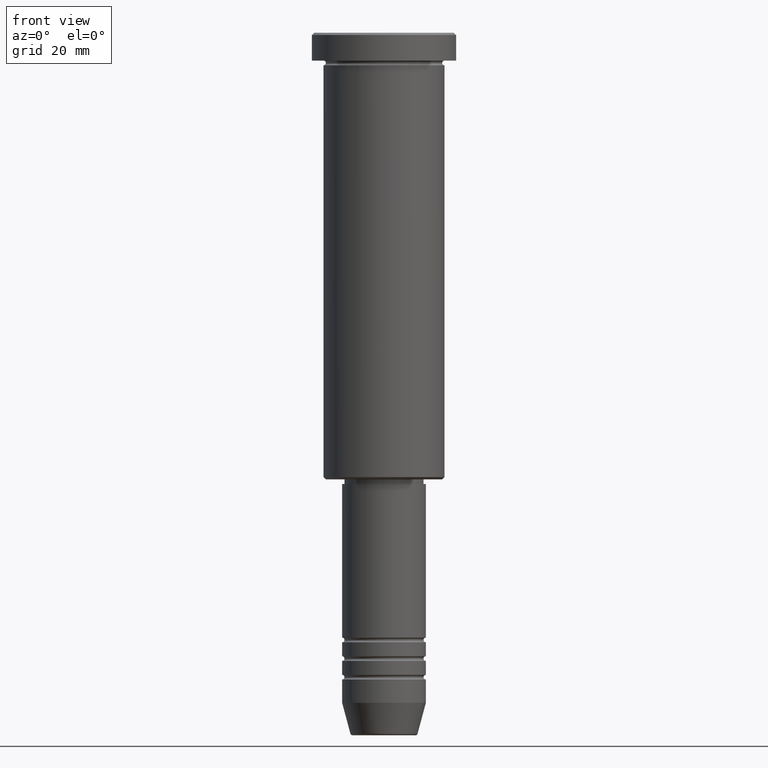
[diagram: clean part render]
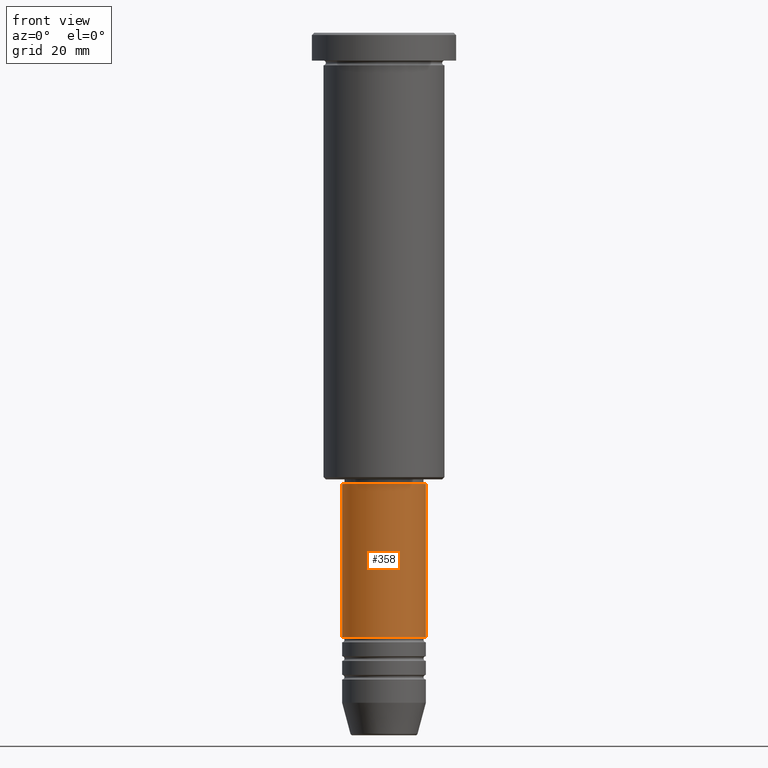
[diagram: same view with one face highlighted and labeled with its STEP entity id]
A machine part, front view. The second image highlights one B-rep face of the part: STEP entity #358.
In plain terms, the highlighted cylindrical surface (partial cylindrical patch) has radius 9 mm, axis along (-0, -0, 1).
Its self-contained STEP definition (entity closure, byte-faithful):
#1 = CARTESIAN_POINT ( 'NONE',  ( 0.000000000000000000, 0.000000000000000000, -97.00000000000000000 ) ) ;
#32 = VERTEX_POINT ( 'NONE', #156 ) ;
#60 = DIRECTION ( 'NONE',  ( -0.000000000000000000, -0.000000000000000000, 1.000000000000000000 ) ) ;
#64 = CARTESIAN_POINT ( 'NONE',  ( 0.000000000000000000, 0.000000000000000000, -129.9999999999998863 ) ) ;
#124 = FACE_OUTER_BOUND ( 'NONE', #795, .T. ) ;
#136 = CARTESIAN_POINT ( 'NONE',  ( 9.000000000000001776, 0.000000000000000000, -129.9999999999998863 ) ) ;
#156 = CARTESIAN_POINT ( 'NONE',  ( -9.000000000000001776, 1.102182119232617911E-15, -129.9999999999998863 ) ) ;
#316 = DIRECTION ( 'NONE',  ( -0.000000000000000000, -0.000000000000000000, 1.000000000000000000 ) ) ;
#323 = CYLINDRICAL_SURFACE ( 'NONE', #432, 9.000000000000000000 ) ;
#352 = LINE ( 'NONE', #1097, #651 ) ;
#353 = EDGE_CURVE ( 'NONE', #394, #724, #672, .T. ) ;
#358 = ADVANCED_FACE ( 'NONE', ( #124 ), #323, .T. ) ;
#394 = VERTEX_POINT ( 'NONE', #136 ) ;
#403 = DIRECTION ( 'NONE',  ( -0.000000000000000000, -0.000000000000000000, 1.000000000000000000 ) ) ;
#426 = DIRECTION ( 'NONE',  ( 1.000000000000000000, 0.000000000000000000, 0.000000000000000000 ) ) ;
#432 = AXIS2_PLACEMENT_3D ( 'NONE', #695, #871, #689 ) ;
#455 = EDGE_CURVE ( 'NONE', #32, #394, #858, .T. ) ;
#515 = ORIENTED_EDGE ( 'NONE', *, *, #353, .T. ) ;
#529 = ORIENTED_EDGE ( 'NONE', *, *, #455, .T. ) ;
#555 = DIRECTION ( 'NONE',  ( 1.000000000000000000, 0.000000000000000000, 0.000000000000000000 ) ) ;
#638 = EDGE_CURVE ( 'NONE', #1129, #724, #799, .T. ) ;
#651 = VECTOR ( 'NONE', #1183, 1000.000000000000000 ) ;
#672 = LINE ( 'NONE', #1139, #837 ) ;
#684 = AXIS2_PLACEMENT_3D ( 'NONE', #1, #403, #555 ) ;
#689 = DIRECTION ( 'NONE',  ( 1.000000000000000000, 0.000000000000000000, 0.000000000000000000 ) ) ;
#695 = CARTESIAN_POINT ( 'NONE',  ( 0.000000000000000000, 0.000000000000000000, 0.000000000000000000 ) ) ;
#724 = VERTEX_POINT ( 'NONE', #1050 ) ;
#760 = AXIS2_PLACEMENT_3D ( 'NONE', #64, #60, #426 ) ;
#795 = EDGE_LOOP ( 'NONE', ( #1003, #529, #515, #1007 ) ) ;
#799 = CIRCLE ( 'NONE', #684, 8.999999999999998224 ) ;
#837 = VECTOR ( 'NONE', #316, 1000.000000000000000 ) ;
#858 = CIRCLE ( 'NONE', #760, 9.000000000000001776 ) ;
#871 = DIRECTION ( 'NONE',  ( -0.000000000000000000, -0.000000000000000000, 1.000000000000000000 ) ) ;
#947 = EDGE_CURVE ( 'NONE', #32, #1129, #352, .T. ) ;
#1003 = ORIENTED_EDGE ( 'NONE', *, *, #947, .F. ) ;
#1007 = ORIENTED_EDGE ( 'NONE', *, *, #638, .F. ) ;
#1050 = CARTESIAN_POINT ( 'NONE',  ( 8.999999999999998224, 0.000000000000000000, -97.00000000000000000 ) ) ;
#1097 = CARTESIAN_POINT ( 'NONE',  ( -9.000000000000000000, 1.102182119232617714E-15, 0.000000000000000000 ) ) ;
#1112 = CARTESIAN_POINT ( 'NONE',  ( -8.999999999999998224, 1.102182119232617714E-15, -97.00000000000000000 ) ) ;
#1129 = VERTEX_POINT ( 'NONE', #1112 ) ;
#1139 = CARTESIAN_POINT ( 'NONE',  ( 9.000000000000000000, 0.000000000000000000, 0.000000000000000000 ) ) ;
#1183 = DIRECTION ( 'NONE',  ( -0.000000000000000000, -0.000000000000000000, 1.000000000000000000 ) ) ;